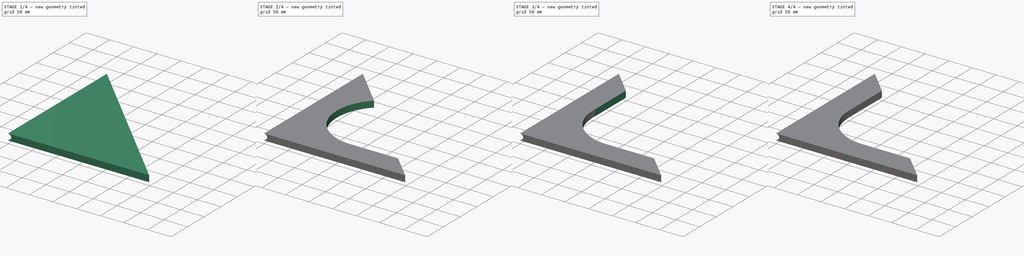
[diagram: build sequence overview — one tinted view per stage of 4, left to right]
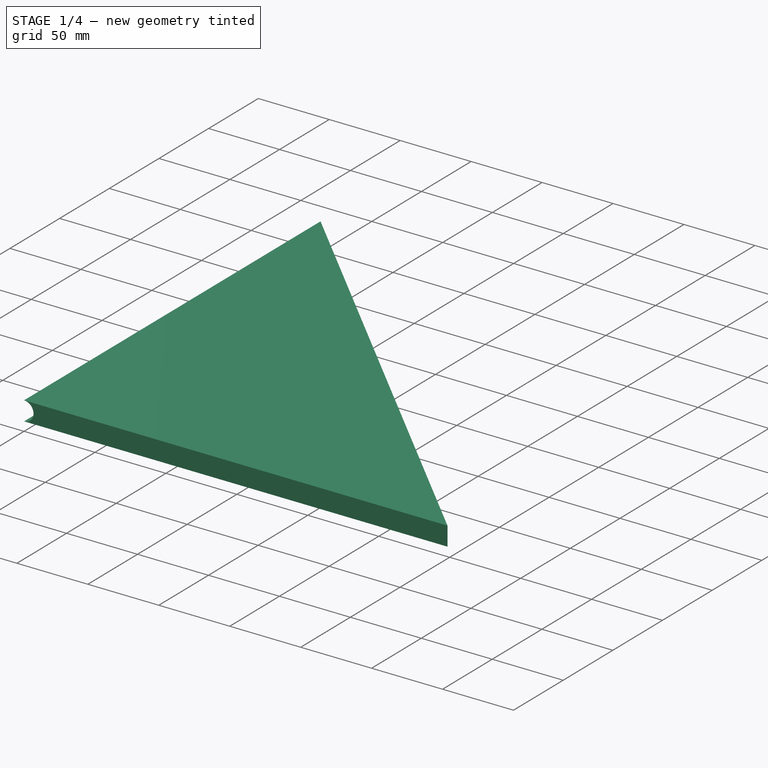
[diagram: stage 1 of 4 — iso view after this stage's code; geometry added in this stage tinted green]
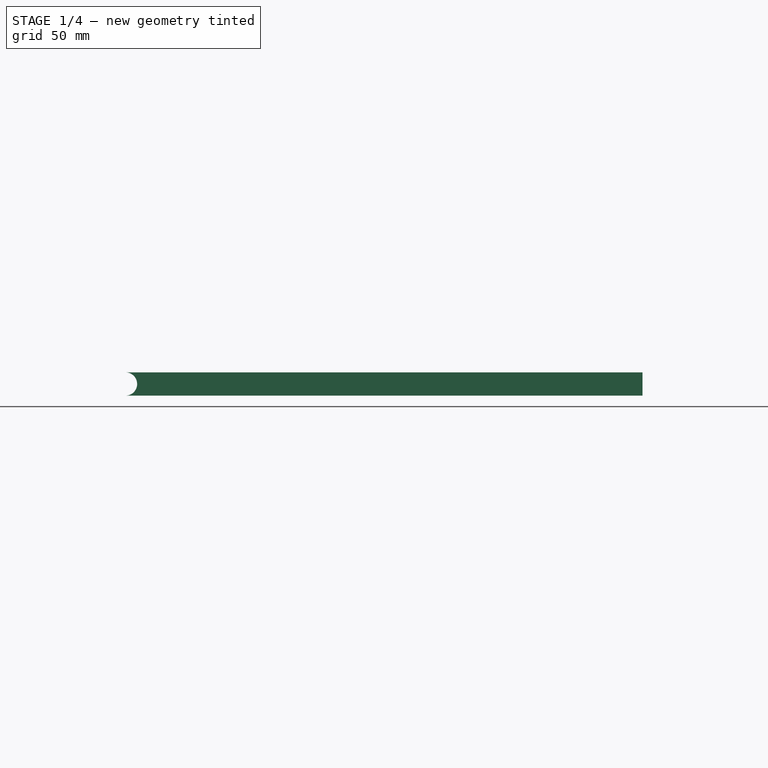
[diagram: stage 1 of 4 — front view after this stage's code; geometry added in this stage tinted green]
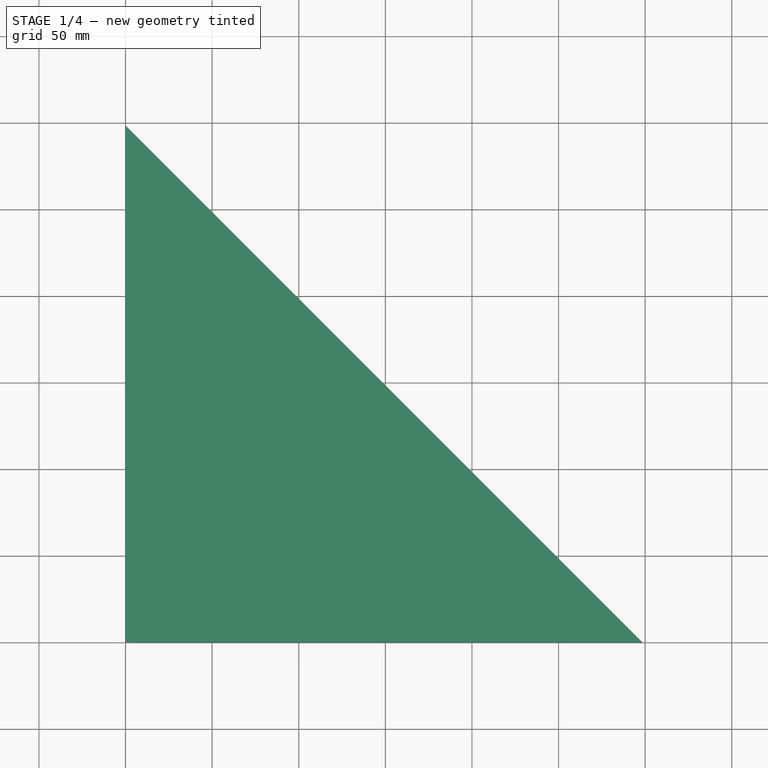
[diagram: stage 1 of 4 — top view after this stage's code; geometry added in this stage tinted green]
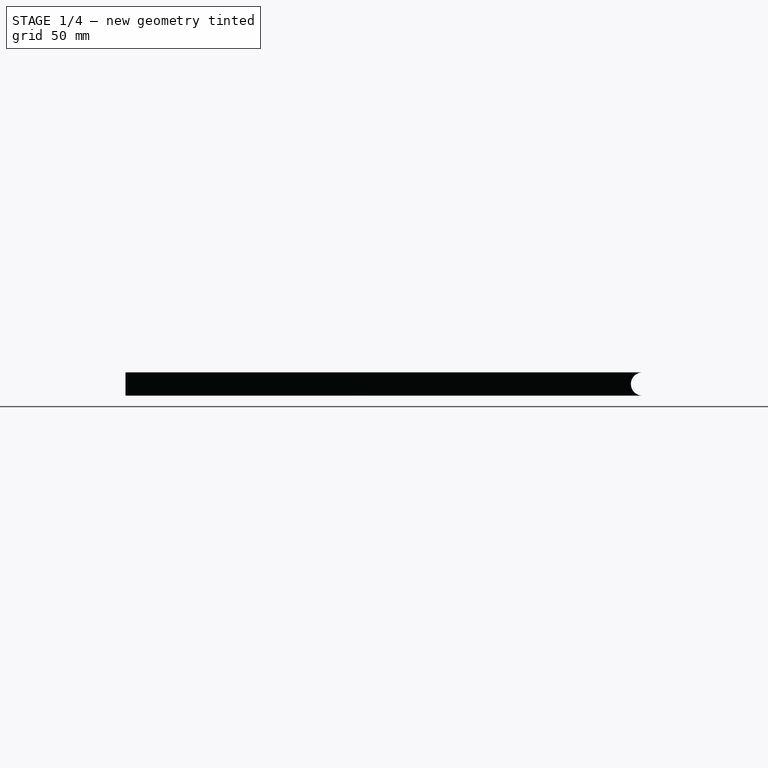
[diagram: stage 1 of 4 — right view after this stage's code; geometry added in this stage tinted green]
FCSTD DOCUMENT  (FreeCAD 0.20R29603 (Git))
Label: shelf holder
License: All rights reserved
LicenseURL: http://en.wikipedia.org/wiki/All_rights_reserved
objects: PartDesign::SubtractiveCylinder×4, PartDesign::SubtractiveBox×2, PartDesign::LinearPattern×2, Spreadsheet::Sheet×1, Sketcher::SketchObject×1, PartDesign::Pad×1, PartDesign::Body×1, App::Part×1
note: 18 computed .brp shape members not serialized (recipe doc carries the construction recipe); baked Part::Feature solids carry a one-line shape summary decoded from their .brp

FEATURE [Spreadsheet::Sheet] Spreadsheet  label="Shelf_holder_dims"
  cells = A1=shelf_holder_height; B1(shelf_holder_height)=298.45; A2=shelf_holder_width; B2(shelf_holder_width)=13.4; A3=shelf_holder_length; B3(shelf_holder_length)=298.45
FEATURE [Sketcher::SketchObject] Sketch
  FullyConstrained = true
  MapMode = 5
  Support = -> [XY_Plane]
  expr: Constraints[6] = <<Shelf_holder_dims>>.shelf_holder_height
  expr: Constraints[7] = <<Shelf_holder_dims>>.shelf_holder_length
  sketch-geometry (3):
    g0: LineSegment StartX=0 StartY=0 StartZ=0 EndX=298.45 EndY=0 EndZ=0
    g1: LineSegment StartX=0 StartY=0 StartZ=0 EndX=0 EndY=298.45 EndZ=0
    g2: LineSegment StartX=0 StartY=298.45 StartZ=0 EndX=298.45 EndY=0 EndZ=0
  constraints (8):
    c: Coincident(g0,g-1)
    c: PointOnObject(g0,g-1)
    c: Coincident(g1,g0)
    c: PointOnObject(g1,g-2)
    c: Coincident(g2,g1)
    c: Coincident(g2,g0)
    c: DistanceY(g1,g1) = 298.45
    c: DistanceX(g0,g0) = 298.45
FEATURE [PartDesign::Pad] Pad
  Direction = (0,0,1)
  Length = 13.4
  Length2 = 10
  Profile = -> Sketch
  ReferenceAxis = -> Sketch [N_Axis]
  Type = 0
  expr: Length = <<Shelf_holder_dims>>.shelf_holder_width
FEATURE [PartDesign::SubtractiveCylinder] Cylinder
  Angle = 180
  AttacherType = Attacher::AttachEngine3D
  AttachmentOffset = pos=(0,6.7,0) rot=(0,0,1;1.5708rad)
  BaseFeature = -> Pad
  FirstAngle = 0
  Height = 298.45
  MapMode = 5
  Placement = pos=(0,1.5e-15,6.7) rot=(0.57735,0.57735,0.57735;4.18879rad)
  Radius = 6.7
  SecondAngle = 0
  Support = -> [Pad]
  expr: .AttachmentOffset.Base.y = <<Shelf_holder_dims>>.shelf_holder_width / 2
  expr: Height = <<Shelf_holder_dims>>.shelf_holder_length
  expr: Radius = <<Shelf_holder_dims>>.shelf_holder_width / 2
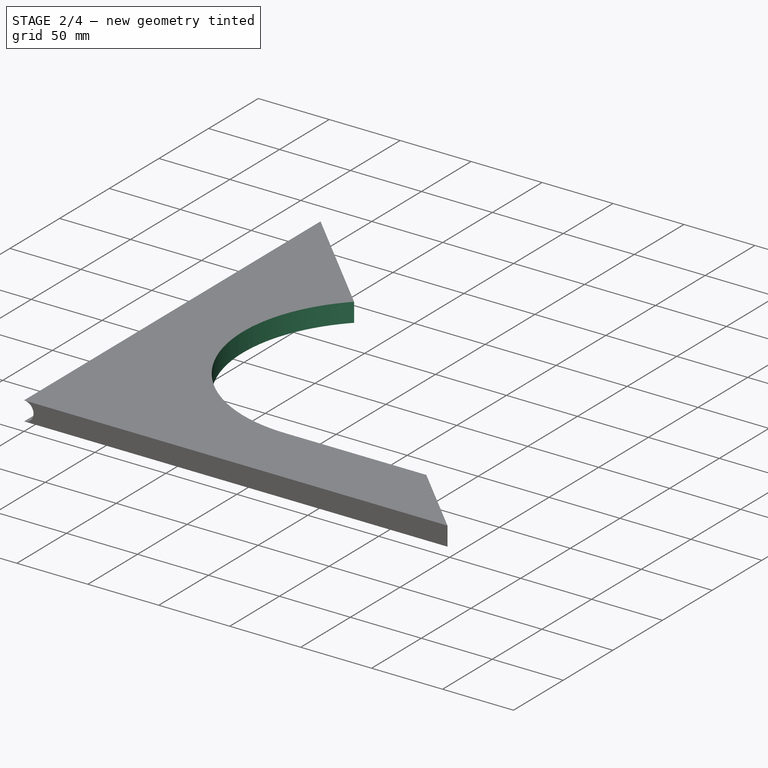
[diagram: stage 2 of 4 — iso view after this stage's code; geometry added in this stage tinted green]
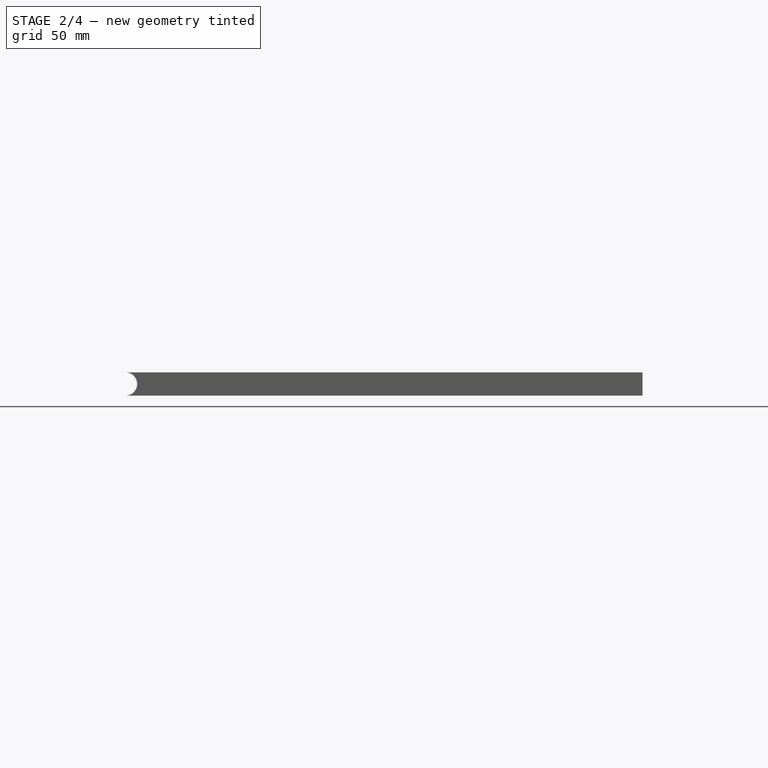
[diagram: stage 2 of 4 — front view after this stage's code; geometry added in this stage tinted green]
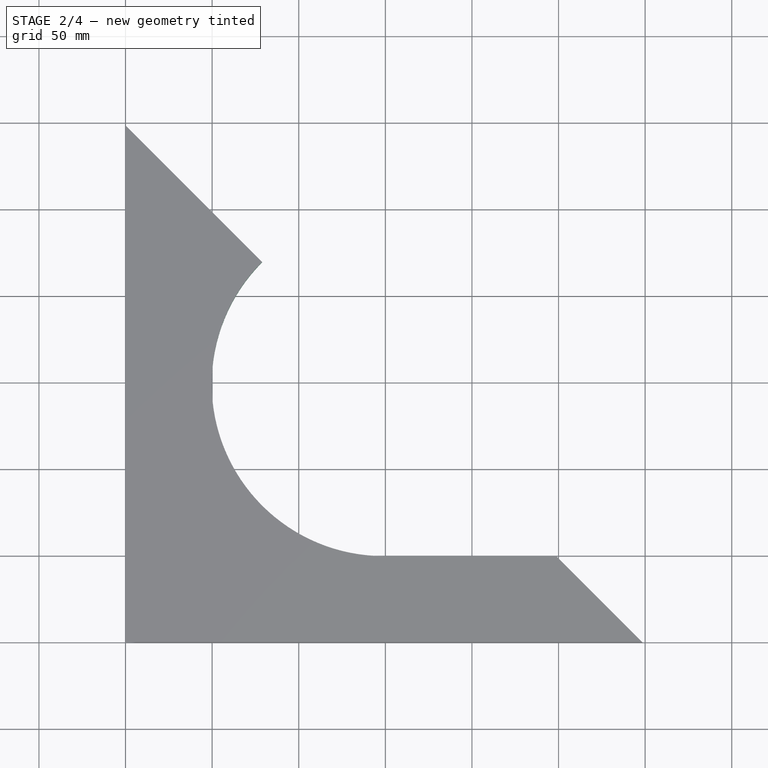
[diagram: stage 2 of 4 — top view after this stage's code; geometry added in this stage tinted green]
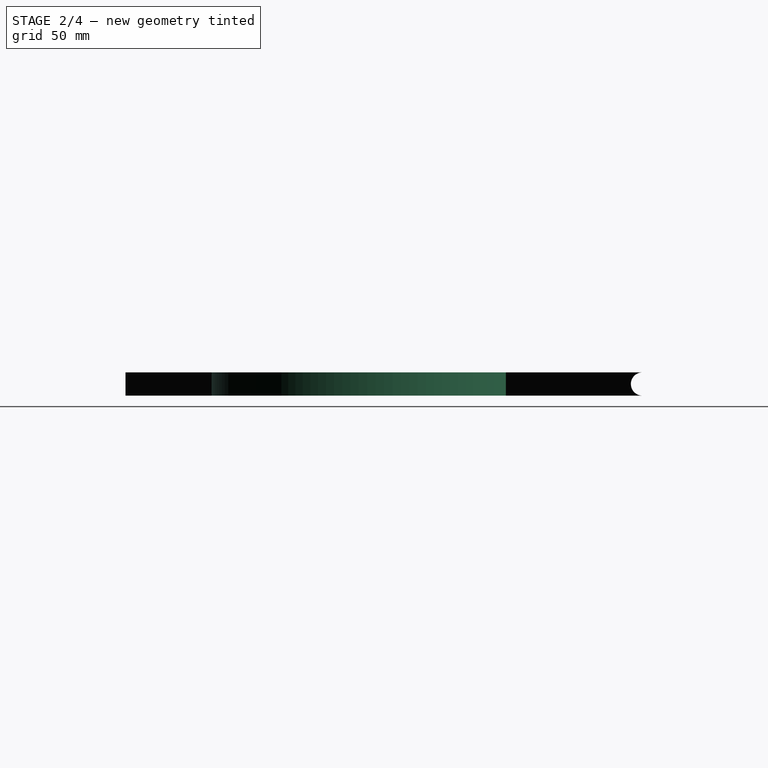
[diagram: stage 2 of 4 — right view after this stage's code; geometry added in this stage tinted green]
FEATURE [PartDesign::SubtractiveCylinder] Cylinder001
  Angle = 360
  AttacherType = Attacher::AttachEngine3D
  AttachmentOffset = pos=(149.225,149.225,-8) rot=(0,0,1;0rad)
  BaseFeature = -> Cylinder
  FirstAngle = 0
  Height = 32
  MapMode = 5
  Placement = pos=(149.225,149.225,-8) rot=(0,0,1;0rad)
  Radius = 99.4833
  SecondAngle = 0
  Support = -> [Cylinder]
  expr: .AttachmentOffset.Base.x = <<Shelf_holder_dims>>.shelf_holder_length / 2
  expr: .AttachmentOffset.Base.y = <<Shelf_holder_dims>>.shelf_holder_height / 2
  expr: Radius = <<Shelf_holder_dims>>.shelf_holder_length / 3
FEATURE [PartDesign::SubtractiveBox] Box
  AttacherType = Attacher::AttachEngine3D
  AttachmentOffset = pos=(0,69.4833,-17) rot=(0,0,1;0rad)
  BaseFeature = -> Cylinder001
  Height = 21
  Length = 149.225
  MapMode = 5
  Placement = pos=(149.225,79.7417,17) rot=(1,0,0;3.14159rad)
  Support = -> [Cylinder001]
  Width = 30
  expr: .AttachmentOffset.Base.y = <<Shelf_holder_dims>>.shelf_holder_length / 3 - 30
  expr: Length = <<Shelf_holder_dims>>.shelf_holder_length / 2
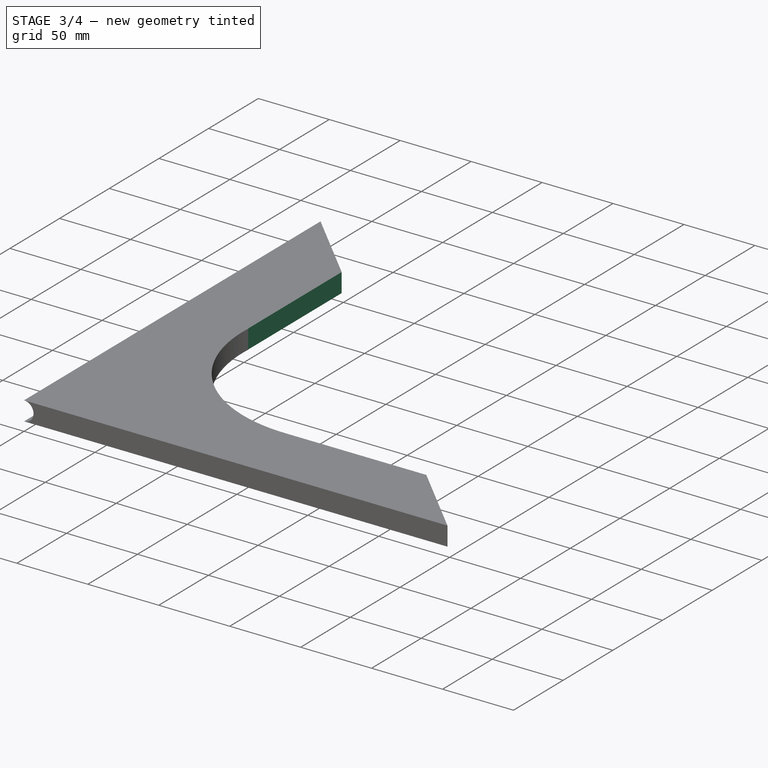
[diagram: stage 3 of 4 — iso view after this stage's code; geometry added in this stage tinted green]
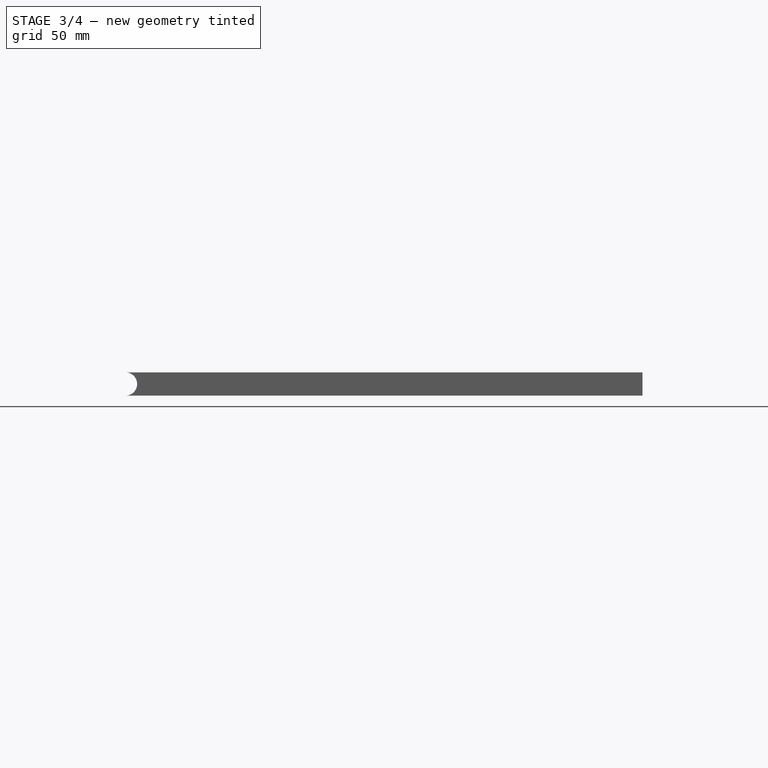
[diagram: stage 3 of 4 — front view after this stage's code; geometry added in this stage tinted green]
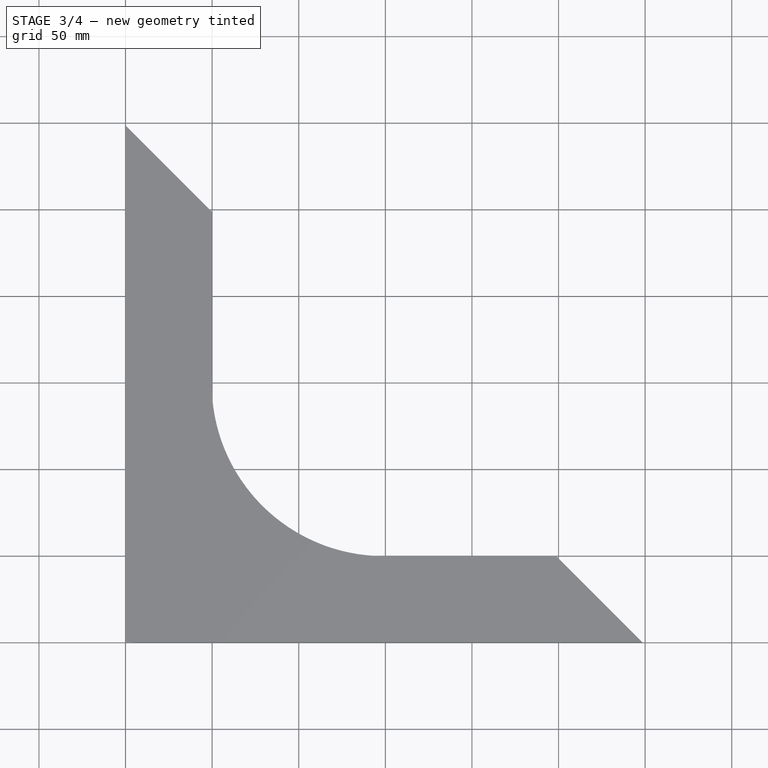
[diagram: stage 3 of 4 — top view after this stage's code; geometry added in this stage tinted green]
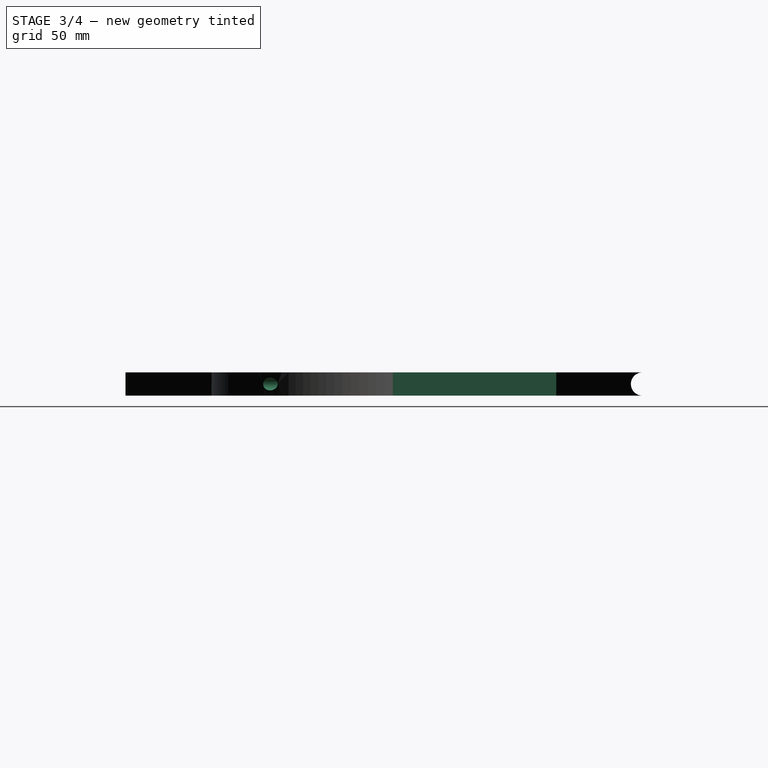
[diagram: stage 3 of 4 — right view after this stage's code; geometry added in this stage tinted green]
FEATURE [PartDesign::SubtractiveBox] Box001
  AttacherType = Attacher::AttachEngine3D
  AttachmentOffset = pos=(-99.4833,-223.837,-17) rot=(0,0,1;0rad)
  BaseFeature = -> Box
  Height = 22
  Length = 33
  MapMode = 5
  Placement = pos=(49.7417,303.579,17) rot=(1,0,0;3.14159rad)
  Support = -> [Box]
  Width = 149.225
  expr: .AttachmentOffset.Base.x = <<Shelf_holder_dims>>.shelf_holder_height / -3
  expr: .AttachmentOffset.Base.y = 3 * <<Shelf_holder_dims>>.shelf_holder_length / -4
  expr: Width = <<Shelf_holder_dims>>.shelf_holder_length / 2
FEATURE [PartDesign::SubtractiveCylinder] Cylinder002
  Angle = 360
  AttacherType = Attacher::AttachEngine3D
  AttachmentOffset = pos=(-74.6125,6.7,5) rot=(0,0,1;0rad)
  BaseFeature = -> Box001
  FirstAngle = 0
  Height = 105
  MapMode = 5
  Placement = pos=(74.6125,5,6.7) rot=(0,0.707107,0.707107;3.14159rad)
  Radius = 3.7
  SecondAngle = 0
  Support = -> [XZ_Plane]
  expr: .AttachmentOffset.Base.x = <<Shelf_holder_dims>>.shelf_holder_length / -4
  expr: .AttachmentOffset.Base.y = <<Shelf_holder_dims>>.shelf_holder_width / 2
  expr: Radius = <<Shelf_holder_dims>>.shelf_holder_width / 2 - 3
FEATURE [PartDesign::LinearPattern] LinearPattern
  BaseFeature = -> Cylinder002
  Direction = -> X_Axis
  Length = 149.225
  Occurrences = 3
  Originals = -> [Cylinder002]
  Placement = pos=(74.6125,5,6.7) rot=(0,0.707107,0.707107;3.14159rad)
  expr: Length = <<Shelf_holder_dims>>.shelf_holder_height / 2
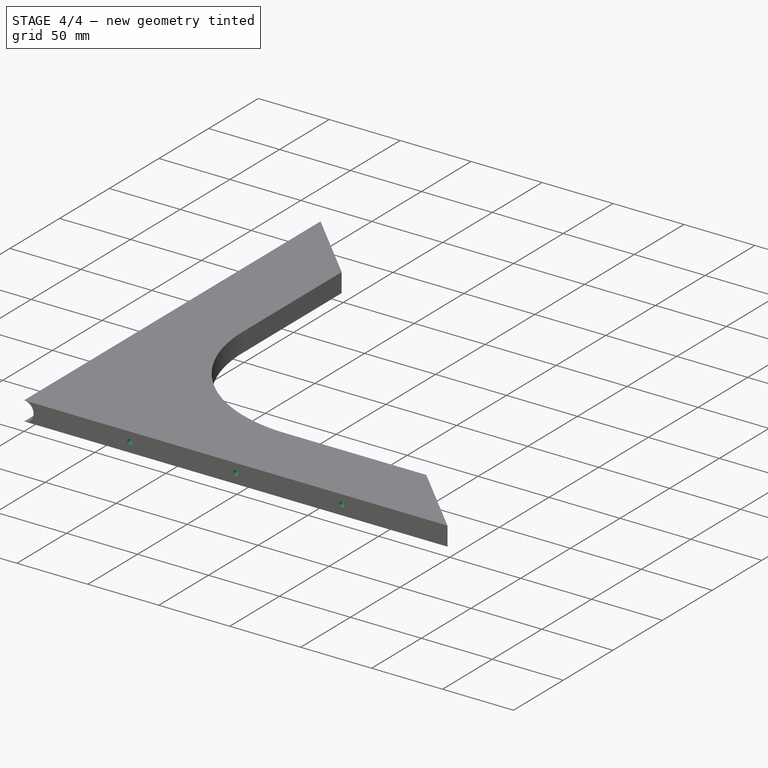
[diagram: stage 4 of 4 — iso view after this stage's code; geometry added in this stage tinted green]
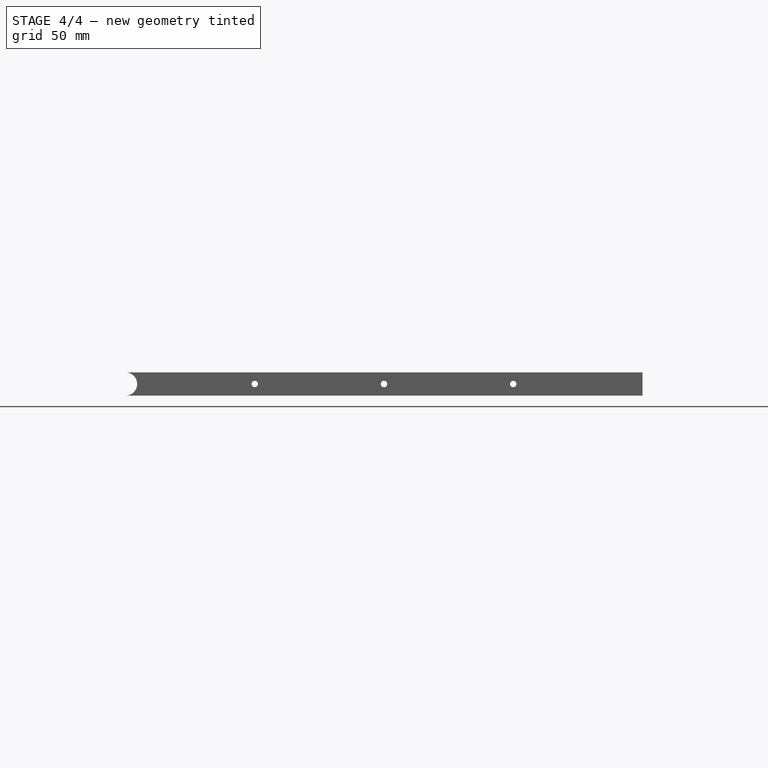
[diagram: stage 4 of 4 — front view after this stage's code; geometry added in this stage tinted green]
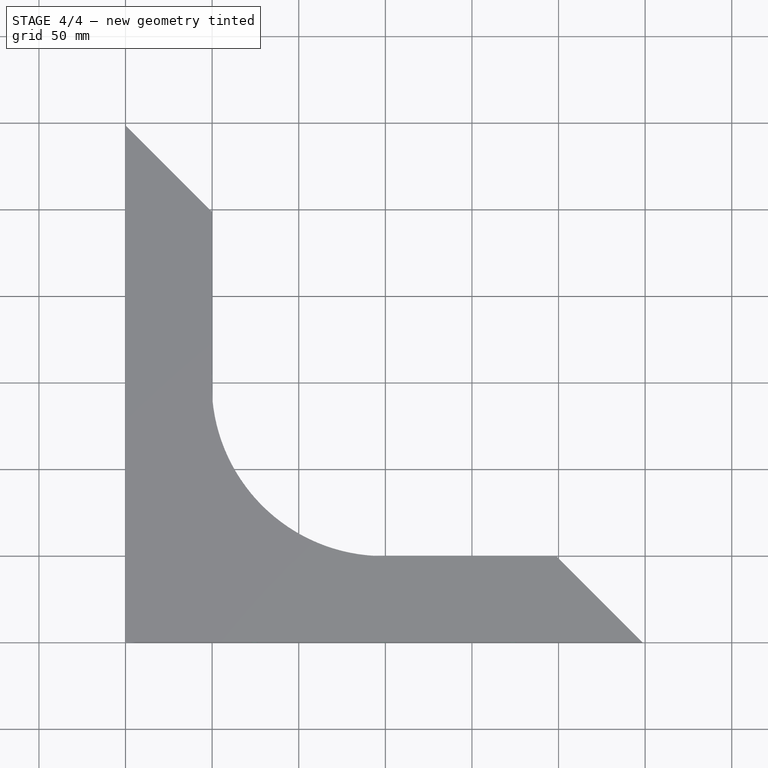
[diagram: stage 4 of 4 — top view after this stage's code; geometry added in this stage tinted green]
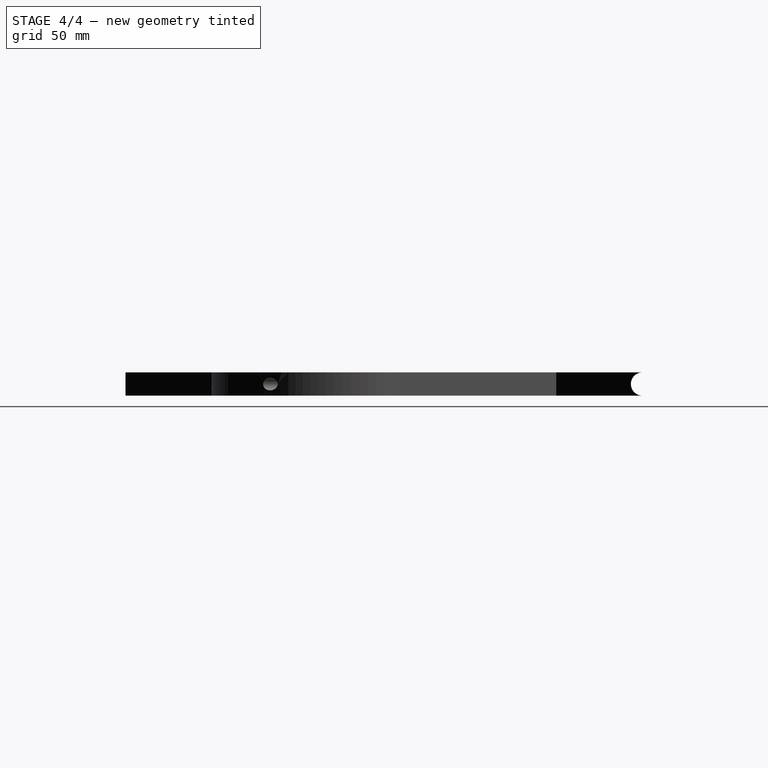
[diagram: stage 4 of 4 — right view after this stage's code; geometry added in this stage tinted green]
FEATURE [PartDesign::SubtractiveCylinder] Cylinder003
  Angle = 360
  AttacherType = Attacher::AttachEngine3D
  AttachmentOffset = pos=(-74.6125,6.7,0) rot=(0,0,1;0rad)
  BaseFeature = -> LinearPattern
  FirstAngle = 0
  Height = 100
  MapMode = 5
  Placement = pos=(74.6125,-1.5e-15,6.7) rot=(0,0.707107,0.707107;3.14159rad)
  Radius = 1.85
  SecondAngle = 0
  Support = -> [XZ_Plane]
  expr: .AttachmentOffset.Base.x = <<Shelf_holder_dims>>.shelf_holder_length / -4
  expr: .AttachmentOffset.Base.y = <<Shelf_holder_dims>>.shelf_holder_width / 2
  expr: Radius = (<<Shelf_holder_dims>>.shelf_holder_width / 2 - 3) / 2
FEATURE [PartDesign::LinearPattern] LinearPattern001
  BaseFeature = -> Cylinder003
  Direction = -> X_Axis
  Length = 149.225
  Occurrences = 3
  Originals = -> [Cylinder003]
  Placement = pos=(74.6125,1e-15,6.7) rot=(0,0.707107,0.707107;3.14159rad)
  expr: Length = <<Shelf_holder_dims>>.shelf_holder_length / 2
FEATURE [PartDesign::Body] Body
  Group = -> [Sketch,Pad,Cylinder,Cylinder001,Box,Box001,Cylinder002,LinearPattern,Cylinder003,LinearPattern001]
  Origin = -> Origin
  Tip = -> LinearPattern001
FEATURE [App::Part] Part
  Group = -> [Body,Spreadsheet]
  Origin = -> Origin001
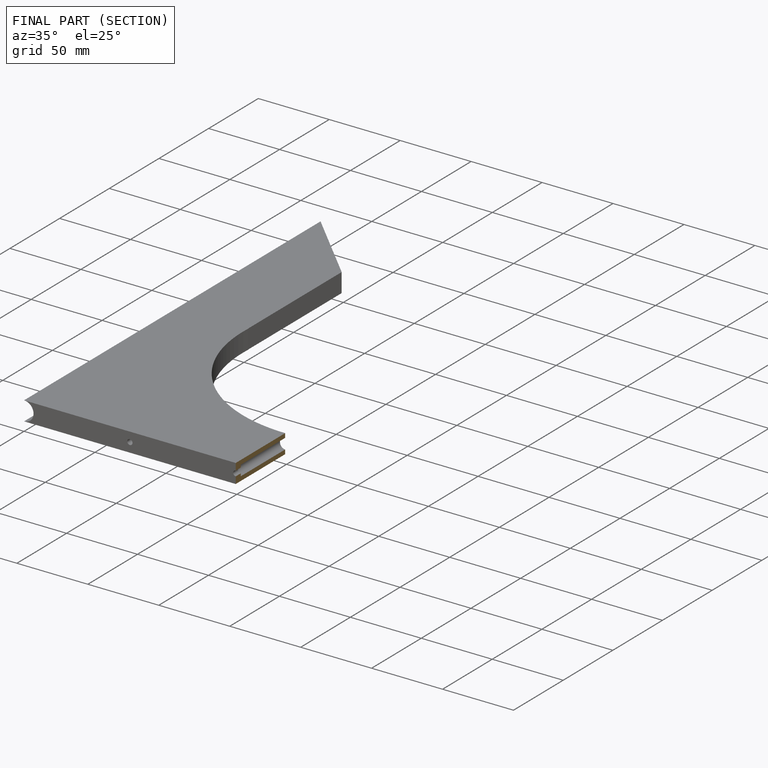
[diagram: finished part — half-section view (interior)]
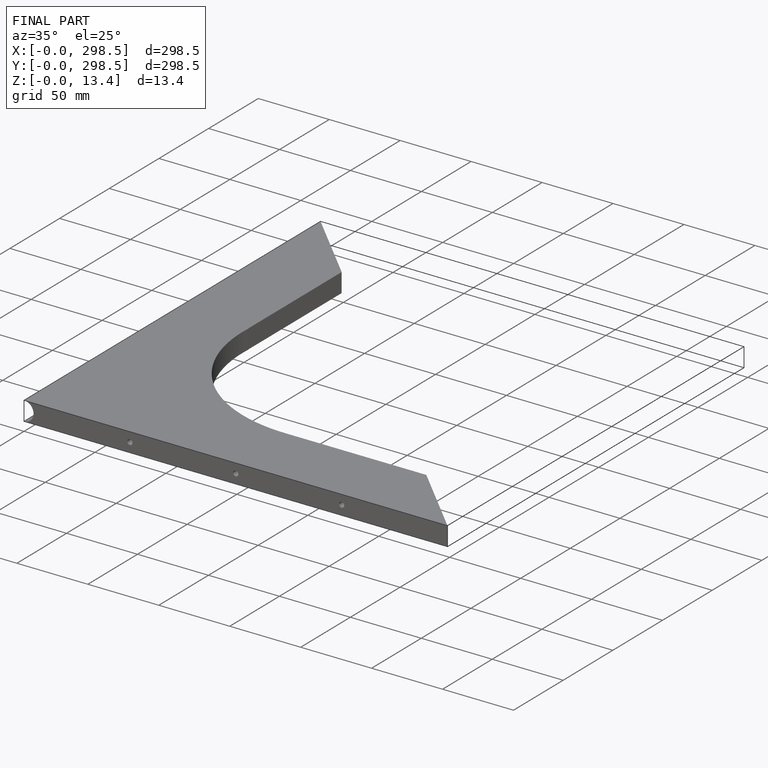
[diagram: finished part — iso view with bounding-box wireframe]
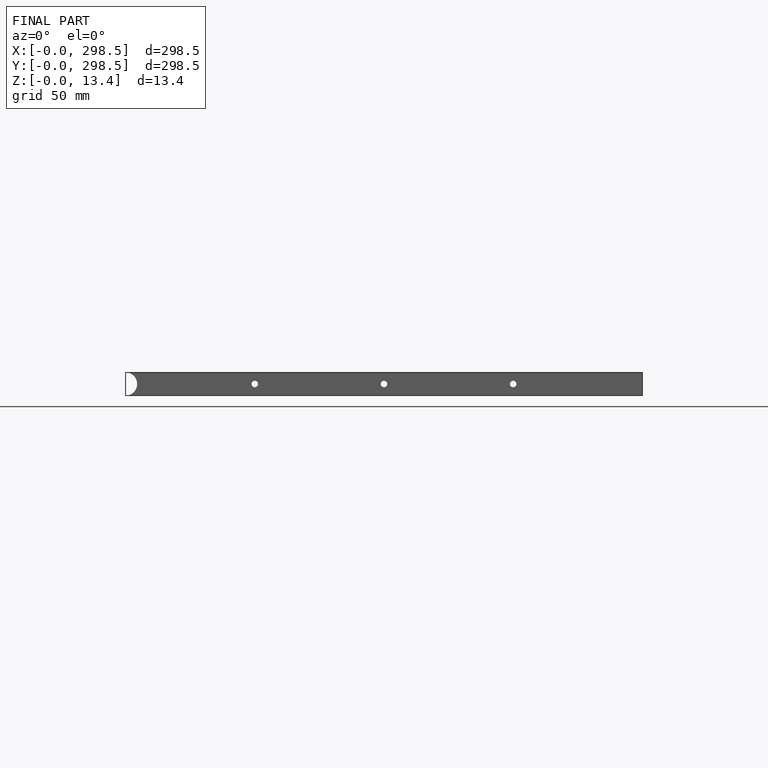
[diagram: finished part — front view with bounding-box wireframe]
